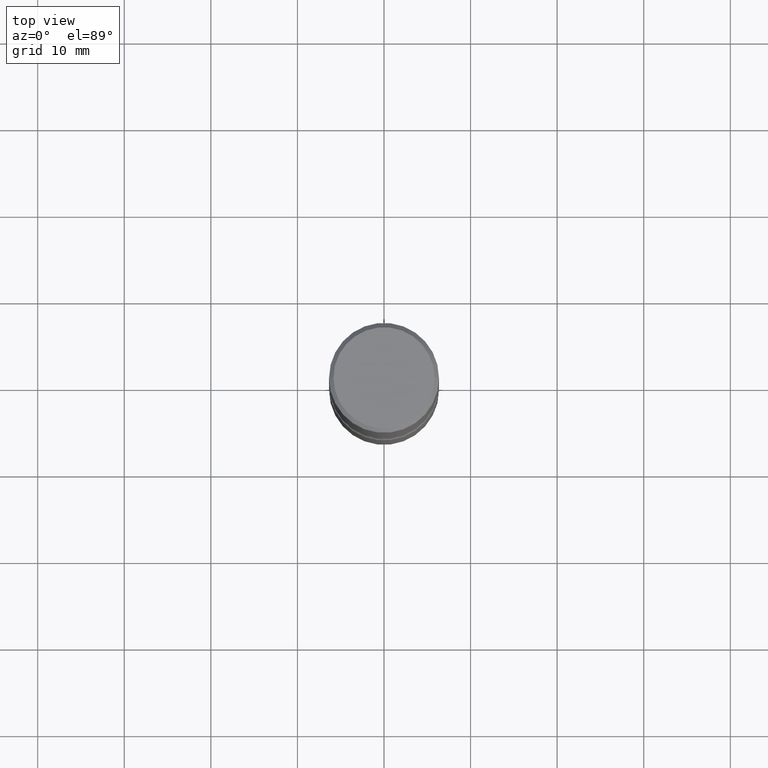
[diagram: clean part render]
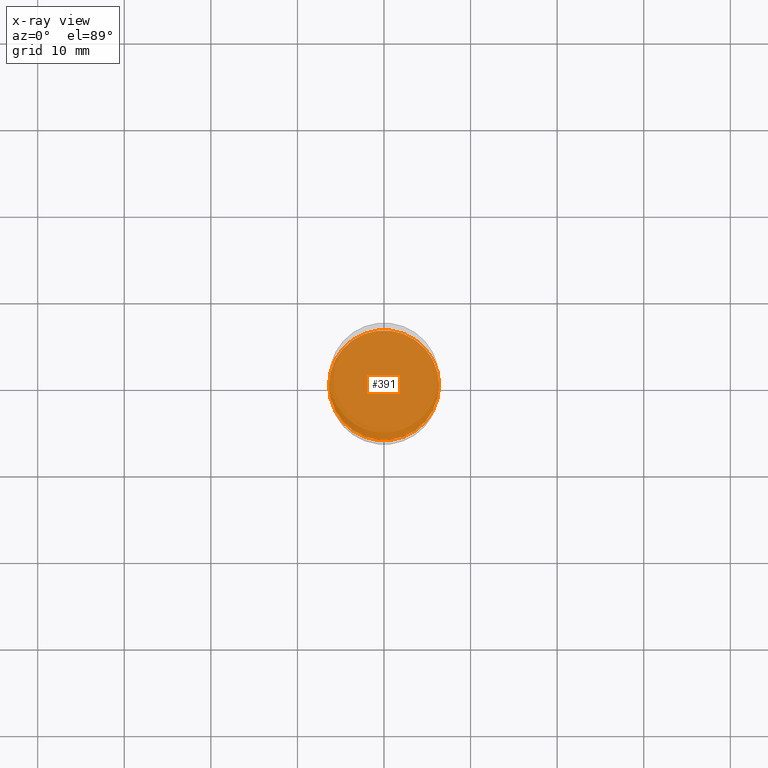
[diagram: x-ray — body ghosted, one internal face saturated and labeled with its STEP entity id]
A machine part, top view, then the same camera in x-ray: the body is ghosted and one INTERNAL B-rep face — a face not visible from any outside direction — is saturated and labeled: STEP entity #391.
In plain terms, the highlighted planar face has unit normal (0, -0, -1).
Its self-contained STEP definition (entity closure, byte-faithful):
#2 = VERTEX_POINT ( 'NONE', #289 ) ;
#29 = PLANE ( 'NONE',  #274 ) ;
#58 = CIRCLE ( 'NONE', #494, 0.2500000000000004996 ) ;
#99 = VERTEX_POINT ( 'NONE', #437 ) ;
#107 = DIRECTION ( 'NONE',  ( 2.438088387897960049E-29, -3.491481338843145188E-15, -1.000000000000000000 ) ) ;
#114 = DIRECTION ( 'NONE',  ( 1.000000000000000000, -6.982962677686268288E-15, 0.000000000000000000 ) ) ;
#143 = DIRECTION ( 'NONE',  ( -2.445468806185136597E-29, 3.491481338843145583E-15, 1.000000000000000000 ) ) ;
#159 = AXIS2_PLACEMENT_3D ( 'NONE', #186, #143, #399 ) ;
#161 = CARTESIAN_POINT ( 'NONE',  ( 4.890937612370274875E-29, -6.982962677686292743E-15, -2.000000000000000444 ) ) ;
#186 = CARTESIAN_POINT ( 'NONE',  ( 4.890937612370274875E-29, -6.982962677686292743E-15, -2.000000000000000444 ) ) ;
#245 = DIRECTION ( 'NONE',  ( -2.445468806185136597E-29, 3.491481338843145583E-15, 1.000000000000000000 ) ) ;
#274 = AXIS2_PLACEMENT_3D ( 'NONE', #545, #107, #451 ) ;
#276 = EDGE_LOOP ( 'NONE', ( #294, #512 ) ) ;
#279 = EDGE_CURVE ( 'NONE', #99, #2, #338, .T. ) ;
#289 = CARTESIAN_POINT ( 'NONE',  ( 0.2500000000000004996, -8.728703347107863365E-15, -2.000000000000000444 ) ) ;
#294 = ORIENTED_EDGE ( 'NONE', *, *, #414, .T. ) ;
#338 = CIRCLE ( 'NONE', #159, 0.2500000000000004996 ) ;
#372 = FACE_OUTER_BOUND ( 'NONE', #276, .T. ) ;
#391 = ADVANCED_FACE ( 'NONE', ( #372 ), #29, .F. ) ;
#399 = DIRECTION ( 'NONE',  ( 1.000000000000000000, -6.982962677686268288E-15, 0.000000000000000000 ) ) ;
#414 = EDGE_CURVE ( 'NONE', #2, #99, #58, .T. ) ;
#437 = CARTESIAN_POINT ( 'NONE',  ( -0.2500000000000004996, -7.231665014815061360E-15, -2.000000000000000444 ) ) ;
#451 = DIRECTION ( 'NONE',  ( -1.000000000000000000, 6.982962677686265922E-15, -4.876176775795935793E-29 ) ) ;
#494 = AXIS2_PLACEMENT_3D ( 'NONE', #161, #245, #114 ) ;
#512 = ORIENTED_EDGE ( 'NONE', *, *, #279, .T. ) ;
#545 = CARTESIAN_POINT ( 'NONE',  ( 1.838714799431134984E-29, -1.135391946754910364E-14, -2.000000000000000444 ) ) ;